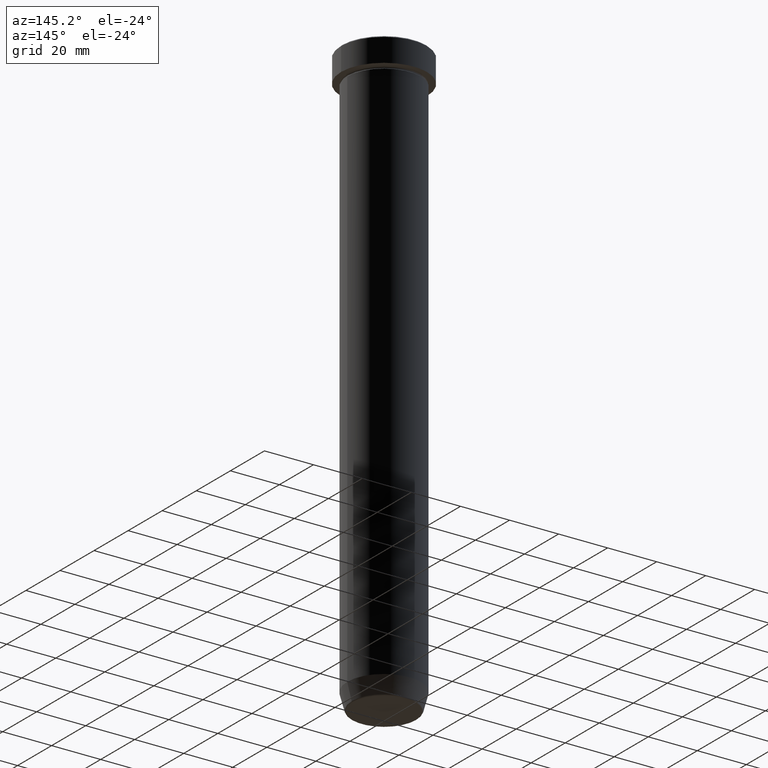
[diagram: clean part render]
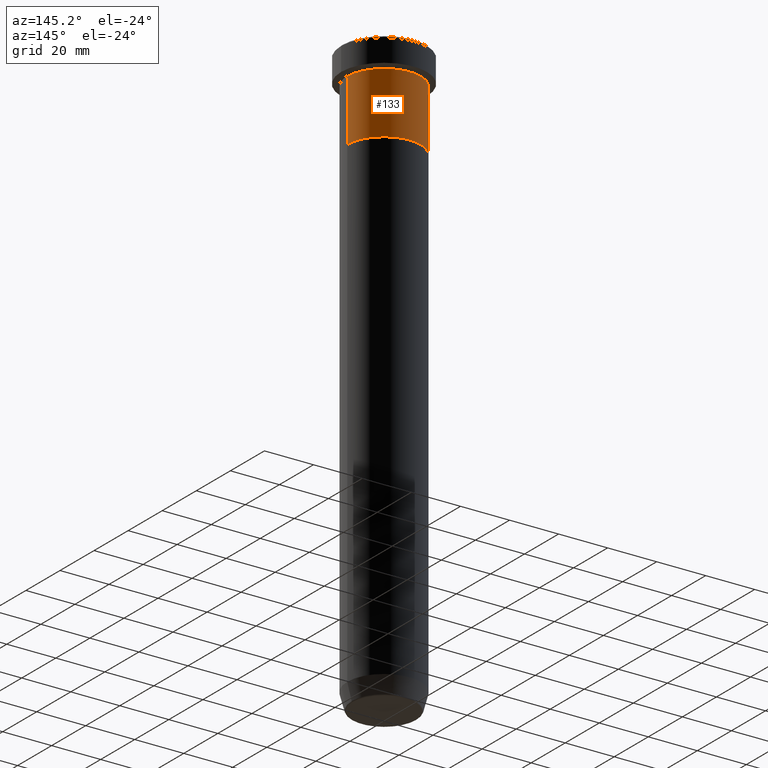
[diagram: same view with one face highlighted and labeled with its STEP entity id]
A machine part, auxiliary view. The second image highlights one B-rep face of the part: STEP entity #133.
In plain terms, the highlighted cylindrical surface (partial cylindrical patch) has radius 15 mm, axis along (-0, -0, 1).
Its self-contained STEP definition (entity closure, byte-faithful):
#10 = DIRECTION ( 'NONE',  ( -0.000000000000000000, -0.000000000000000000, 1.000000000000000000 ) ) ;
#12 = CARTESIAN_POINT ( 'NONE',  ( 15.00000000000000000, 0.000000000000000000, -36.00000000000000000 ) ) ;
#19 = VERTEX_POINT ( 'NONE', #535 ) ;
#49 = CIRCLE ( 'NONE', #123, 15.00000000000000000 ) ;
#61 = LINE ( 'NONE', #380, #83 ) ;
#71 = EDGE_CURVE ( 'NONE', #584, #75, #413, .T. ) ;
#75 = VERTEX_POINT ( 'NONE', #140 ) ;
#83 = VECTOR ( 'NONE', #482, 1000.000000000000000 ) ;
#106 = CARTESIAN_POINT ( 'NONE',  ( 0.000000000000000000, 0.000000000000000000, 0.000000000000000000 ) ) ;
#108 = ORIENTED_EDGE ( 'NONE', *, *, #71, .T. ) ;
#121 = ORIENTED_EDGE ( 'NONE', *, *, #480, .T. ) ;
#123 = AXIS2_PLACEMENT_3D ( 'NONE', #376, #596, #148 ) ;
#133 = ADVANCED_FACE ( 'NONE', ( #152 ), #336, .T. ) ;
#140 = CARTESIAN_POINT ( 'NONE',  ( -15.00000000000000000, 1.836970198721029589E-15, -11.00000000000000000 ) ) ;
#148 = DIRECTION ( 'NONE',  ( 1.000000000000000000, 0.000000000000000000, 0.000000000000000000 ) ) ;
#149 = EDGE_CURVE ( 'NONE', #384, #19, #61, .T. ) ;
#152 = FACE_OUTER_BOUND ( 'NONE', #372, .T. ) ;
#199 = DIRECTION ( 'NONE',  ( 1.000000000000000000, 0.000000000000000000, 0.000000000000000000 ) ) ;
#222 = AXIS2_PLACEMENT_3D ( 'NONE', #106, #294, #199 ) ;
#253 = ORIENTED_EDGE ( 'NONE', *, *, #149, .F. ) ;
#259 = VECTOR ( 'NONE', #10, 1000.000000000000000 ) ;
#294 = DIRECTION ( 'NONE',  ( -0.000000000000000000, -0.000000000000000000, 1.000000000000000000 ) ) ;
#336 = CYLINDRICAL_SURFACE ( 'NONE', #222, 15.00000000000000000 ) ;
#348 = ORIENTED_EDGE ( 'NONE', *, *, #387, .F. ) ;
#372 = EDGE_LOOP ( 'NONE', ( #121, #108, #348, #253 ) ) ;
#376 = CARTESIAN_POINT ( 'NONE',  ( 0.000000000000000000, 0.000000000000000000, -11.00000000000000000 ) ) ;
#380 = CARTESIAN_POINT ( 'NONE',  ( 15.00000000000000000, 0.000000000000000000, 0.000000000000000000 ) ) ;
#384 = VERTEX_POINT ( 'NONE', #12 ) ;
#387 = EDGE_CURVE ( 'NONE', #19, #75, #49, .T. ) ;
#399 = CARTESIAN_POINT ( 'NONE',  ( -15.00000000000000000, 1.836970198721029589E-15, -36.00000000000000000 ) ) ;
#413 = LINE ( 'NONE', #595, #259 ) ;
#480 = EDGE_CURVE ( 'NONE', #384, #584, #526, .T. ) ;
#482 = DIRECTION ( 'NONE',  ( -0.000000000000000000, -0.000000000000000000, 1.000000000000000000 ) ) ;
#513 = CARTESIAN_POINT ( 'NONE',  ( 0.000000000000000000, 0.000000000000000000, -36.00000000000000000 ) ) ;
#526 = CIRCLE ( 'NONE', #593, 15.00000000000000000 ) ;
#535 = CARTESIAN_POINT ( 'NONE',  ( 15.00000000000000000, 0.000000000000000000, -11.00000000000000000 ) ) ;
#547 = DIRECTION ( 'NONE',  ( -0.000000000000000000, -0.000000000000000000, 1.000000000000000000 ) ) ;
#584 = VERTEX_POINT ( 'NONE', #399 ) ;
#593 = AXIS2_PLACEMENT_3D ( 'NONE', #513, #547, #594 ) ;
#594 = DIRECTION ( 'NONE',  ( 1.000000000000000000, 0.000000000000000000, 0.000000000000000000 ) ) ;
#595 = CARTESIAN_POINT ( 'NONE',  ( -15.00000000000000000, 1.836970198721029589E-15, 0.000000000000000000 ) ) ;
#596 = DIRECTION ( 'NONE',  ( -0.000000000000000000, -0.000000000000000000, 1.000000000000000000 ) ) ;